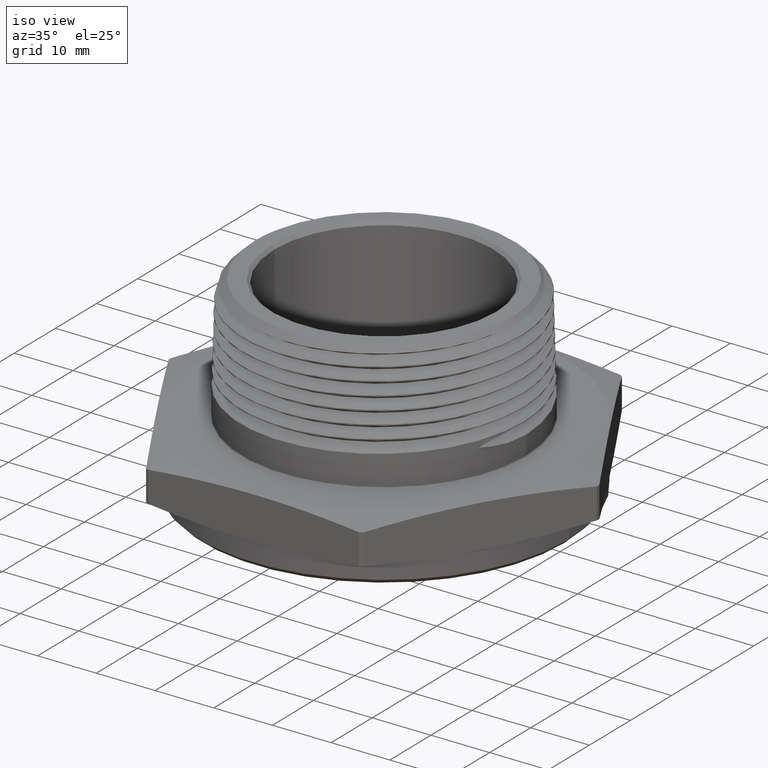
[diagram: clean part render]
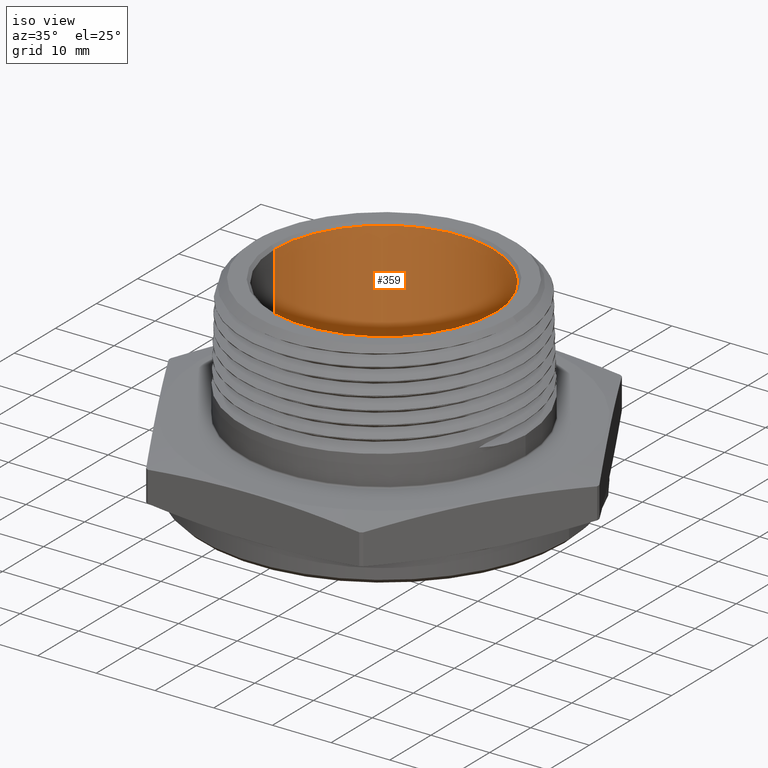
[diagram: same view with one face highlighted and labeled with its STEP entity id]
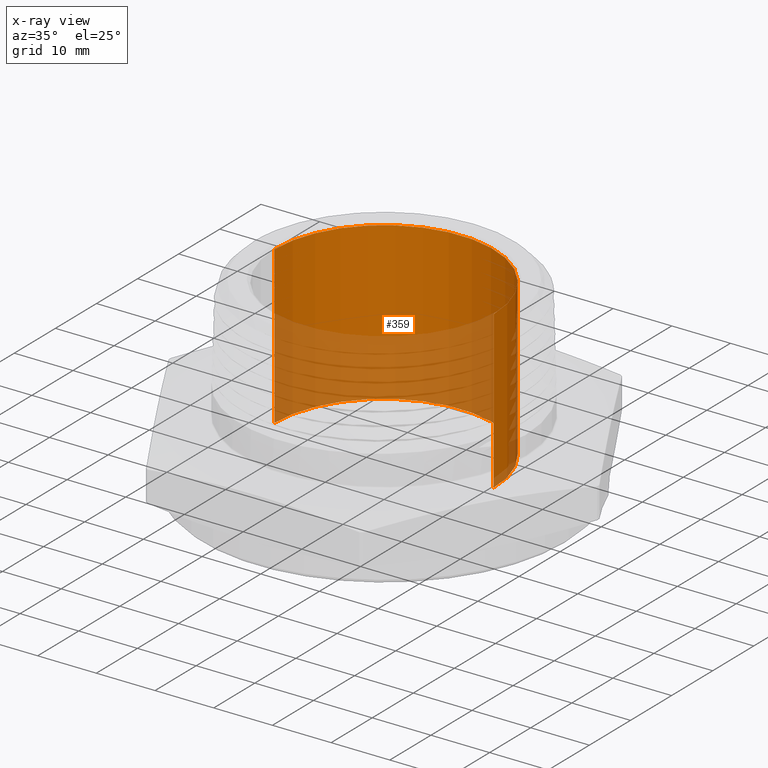
[diagram: x-ray of the same camera — body ghosted, the highlighted face saturated]
A machine part, iso view. The second image highlights one B-rep face of the part: STEP entity #359.
The next image is the same camera in x-ray: the body ghosted, the highlighted face saturated — about 41% of this face is hidden behind the body in this view.
In plain terms, the highlighted cylindrical surface (partial cylindrical patch) has radius 18.669 mm, axis along (-0, -0, 1).
Its self-contained STEP definition (entity closure, byte-faithful):
#5 = VERTEX_POINT ( 'NONE', #7774 ) ;
#39 = AXIS2_PLACEMENT_3D ( 'NONE', #5306, #5302, #5304 ) ;
#117 = EDGE_CURVE ( 'NONE', #5, #687, #5147, .T. ) ;
#118 = EDGE_CURVE ( 'NONE', #7468, #7485, #5148, .T. ) ;
#211 = EDGE_CURVE ( 'NONE', #687, #7485, #444, .T. ) ;
#212 = EDGE_CURVE ( 'NONE', #5, #7468, #439, .T. ) ;
#275 = AXIS2_PLACEMENT_3D ( 'NONE', #6388, #6389, #6390 ) ;
#276 = AXIS2_PLACEMENT_3D ( 'NONE', #6391, #6392, #6393 ) ;
#359 = ADVANCED_FACE ( 'NONE', ( #536 ), #545, .F. ) ;
#439 = CIRCLE ( 'NONE', #276, 0.7349999999999999900 ) ;
#444 = CIRCLE ( 'NONE', #275, 0.7349999999999997600 ) ;
#536 = FACE_OUTER_BOUND ( 'NONE', #4997, .T. ) ;
#545 = CYLINDRICAL_SURFACE ( 'NONE', #39, 0.7349999999999999900 ) ;
#687 = VERTEX_POINT ( 'NONE', #3575 ) ;
#841 = CARTESIAN_POINT ( 'NONE',  ( -0.7349999999999999900, 9.001153973733045900E-017, 0.04685039370078740400 ) ) ;
#851 = CARTESIAN_POINT ( 'NONE',  ( -0.7349999999999997600, 9.001153973733043400E-017, 1.100000000000000100 ) ) ;
#3575 = CARTESIAN_POINT ( 'NONE',  ( 0.7349999999999997600, 0.0000000000000000000, 1.100000000000000100 ) ) ;
#4997 = EDGE_LOOP ( 'NONE', ( #5089, #5090, #5091, #5092 ) ) ;
#5089 = ORIENTED_EDGE ( 'NONE', *, *, #118, .F. ) ;
#5090 = ORIENTED_EDGE ( 'NONE', *, *, #212, .F. ) ;
#5091 = ORIENTED_EDGE ( 'NONE', *, *, #117, .T. ) ;
#5092 = ORIENTED_EDGE ( 'NONE', *, *, #211, .T. ) ;
#5147 = LINE ( 'NONE', #7282, #5150 ) ;
#5148 = LINE ( 'NONE', #7283, #5152 ) ;
#5150 = VECTOR ( 'NONE', #7287, 39.37007874015748100 ) ;
#5152 = VECTOR ( 'NONE', #7278, 39.37007874015748100 ) ;
#5302 = DIRECTION ( 'NONE',  ( -2.307956700049595900E-032, -0.0000000000000000000, 1.000000000000000000 ) ) ;
#5304 = DIRECTION ( 'NONE',  ( 1.000000000000000000, 0.0000000000000000000, 0.0000000000000000000 ) ) ;
#5306 = CARTESIAN_POINT ( 'NONE',  ( 1.224646799147352600E-018, 0.0000000000000000000, -0.1600000000000000000 ) ) ;
#6388 = CARTESIAN_POINT ( 'NONE',  ( 1.224646799147323500E-018, 0.0000000000000000000, 1.100000000000000100 ) ) ;
#6389 = DIRECTION ( 'NONE',  ( -2.307956700049595900E-032, -0.0000000000000000000, 1.000000000000000000 ) ) ;
#6390 = DIRECTION ( 'NONE',  ( 1.000000000000000000, 0.0000000000000000000, 0.0000000000000000000 ) ) ;
#6391 = CARTESIAN_POINT ( 'NONE',  ( 1.224646799147347800E-018, 0.0000000000000000000, 0.04685039370078740400 ) ) ;
#6392 = DIRECTION ( 'NONE',  ( -2.307956700049595900E-032, -0.0000000000000000000, 1.000000000000000000 ) ) ;
#6393 = DIRECTION ( 'NONE',  ( 1.000000000000000000, 0.0000000000000000000, 0.0000000000000000000 ) ) ;
#7278 = DIRECTION ( 'NONE',  ( -2.307956700049595600E-032, -0.0000000000000000000, 1.000000000000000000 ) ) ;
#7282 = CARTESIAN_POINT ( 'NONE',  ( 0.7349999999999999900, 0.0000000000000000000, -0.1600000000000000000 ) ) ;
#7283 = CARTESIAN_POINT ( 'NONE',  ( -0.7349999999999999900, 9.001153973733045900E-017, -0.1600000000000000000 ) ) ;
#7287 = DIRECTION ( 'NONE',  ( -2.307956700049595600E-032, -0.0000000000000000000, 1.000000000000000000 ) ) ;
#7468 = VERTEX_POINT ( 'NONE', #841 ) ;
#7485 = VERTEX_POINT ( 'NONE', #851 ) ;
#7774 = CARTESIAN_POINT ( 'NONE',  ( 0.7349999999999999900, 0.0000000000000000000, 0.04685039370078740400 ) ) ;